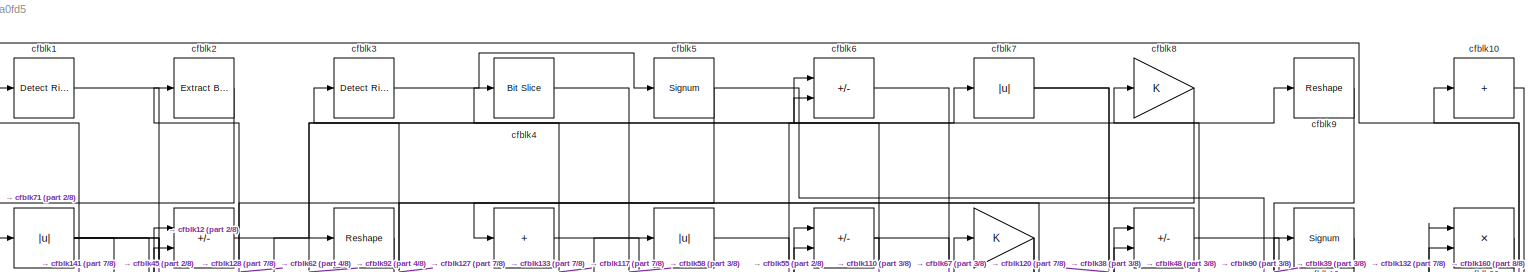
[diagram: root canvas - part 1/8, full width, top band]
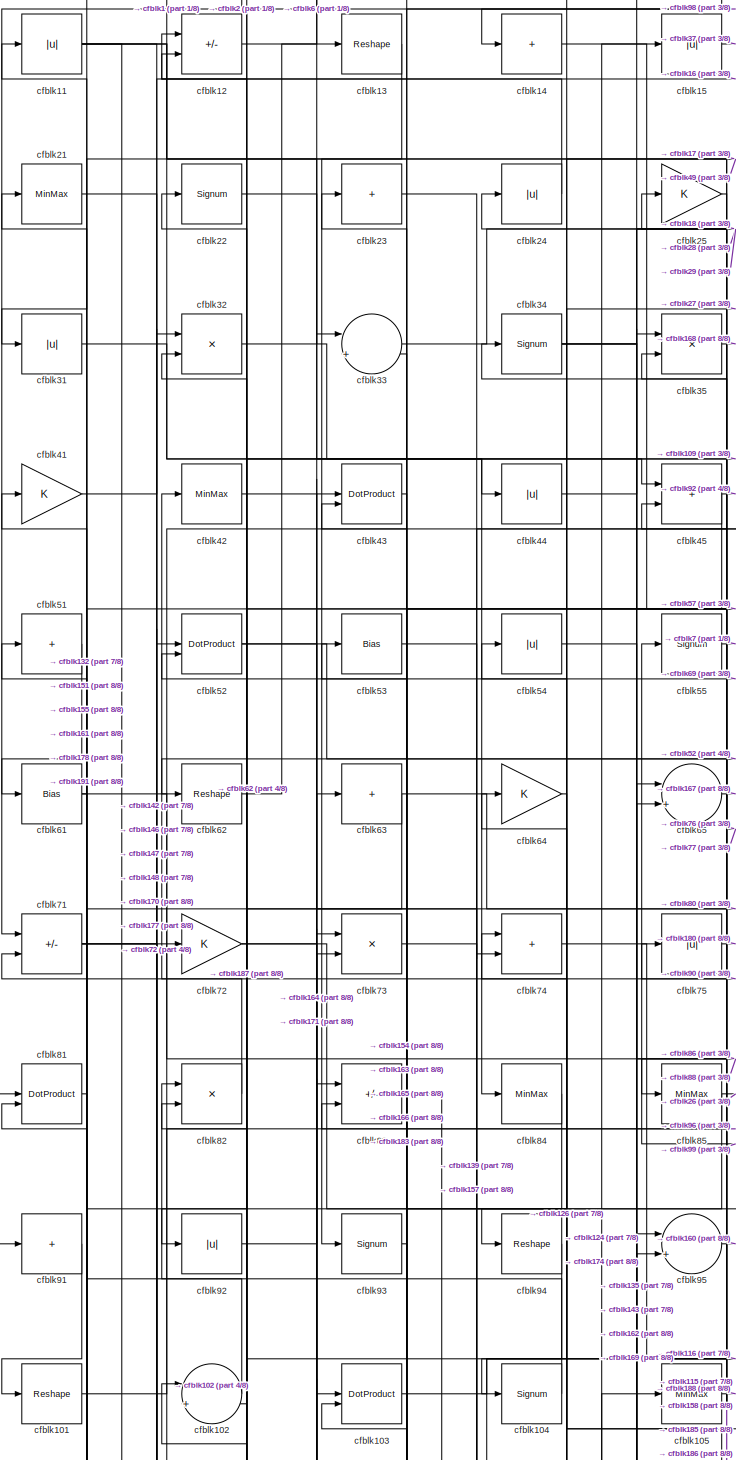
[diagram: root canvas - part 2/8, top left region]
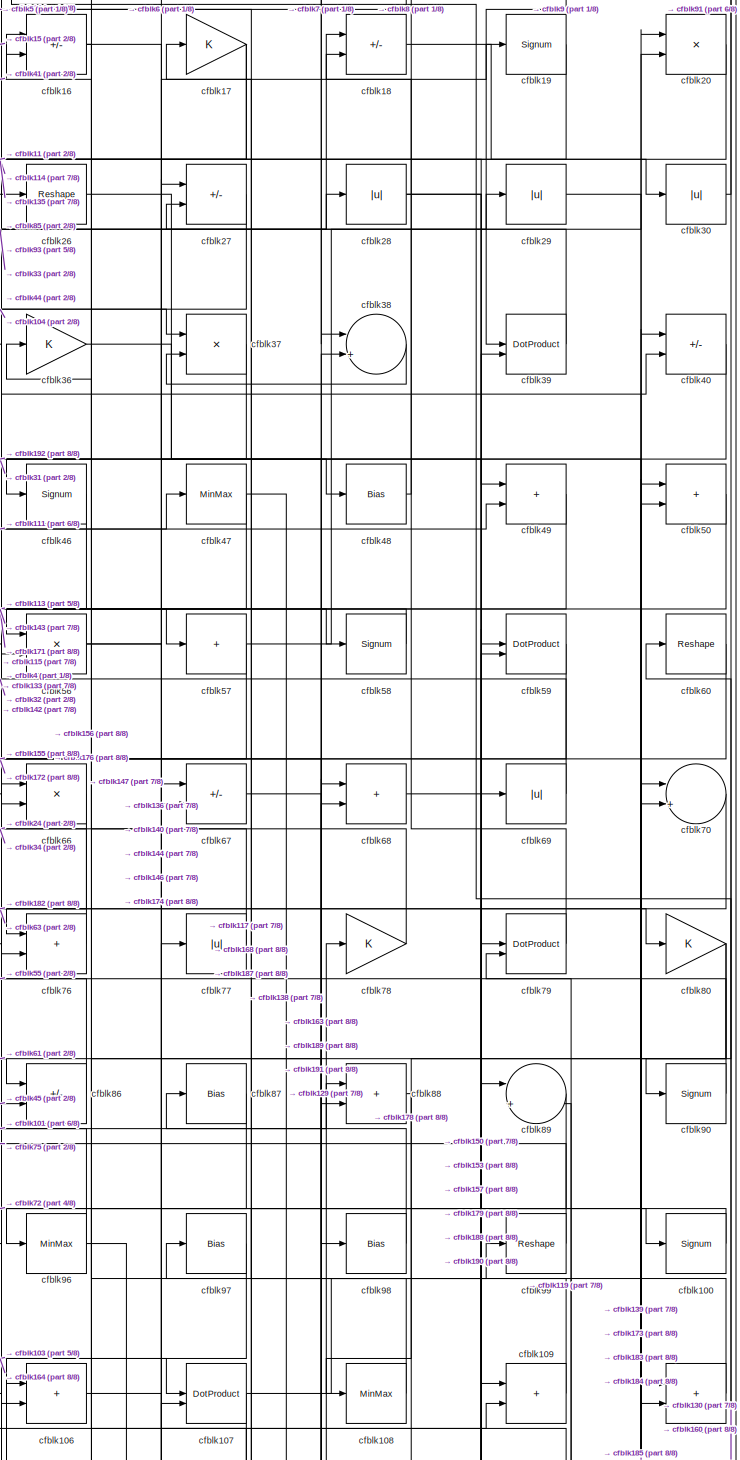
[diagram: root canvas - part 3/8, top right region]
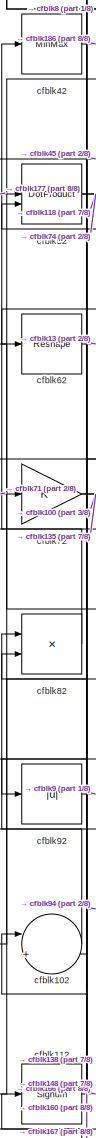
[diagram: root canvas - part 4/8, middle left region]
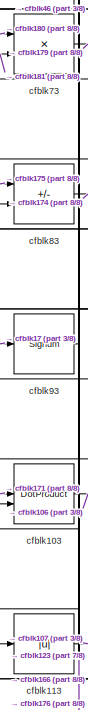
[diagram: root canvas - part 5/8, middle left region]
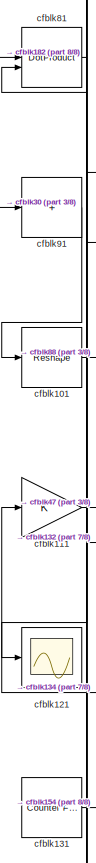
[diagram: root canvas - part 6/8, middle left region]
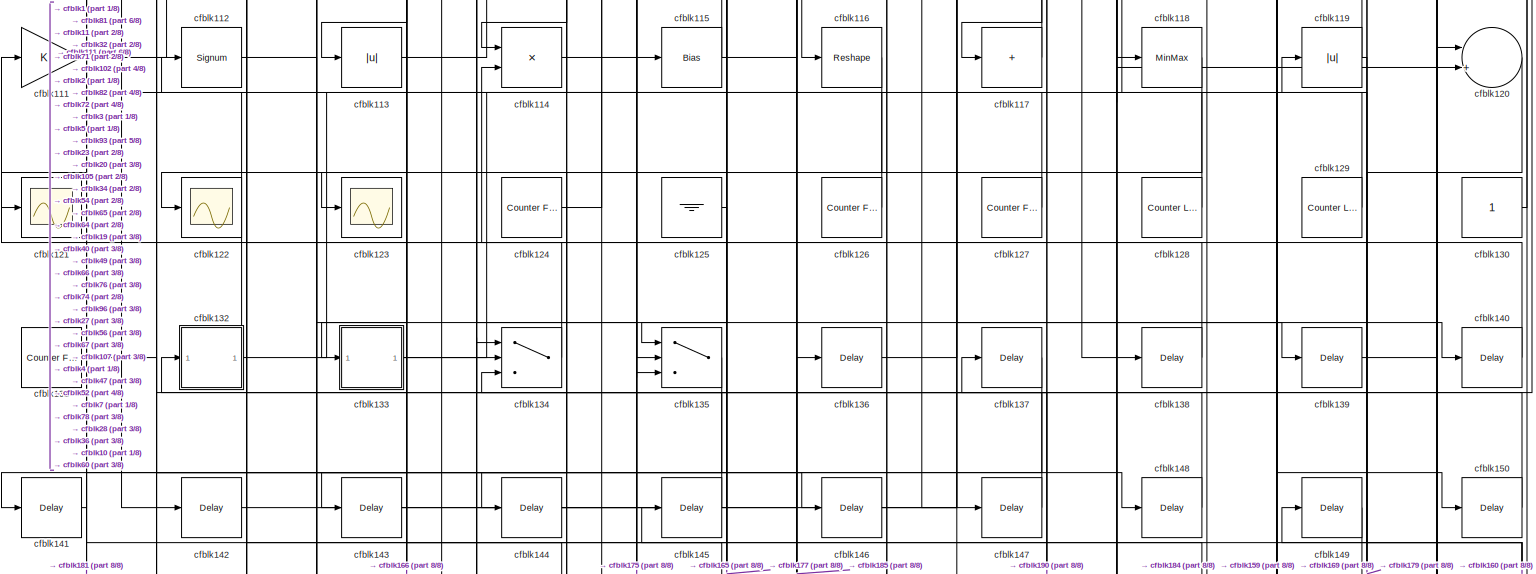
[diagram: root canvas - part 7/8, full width, middle band]
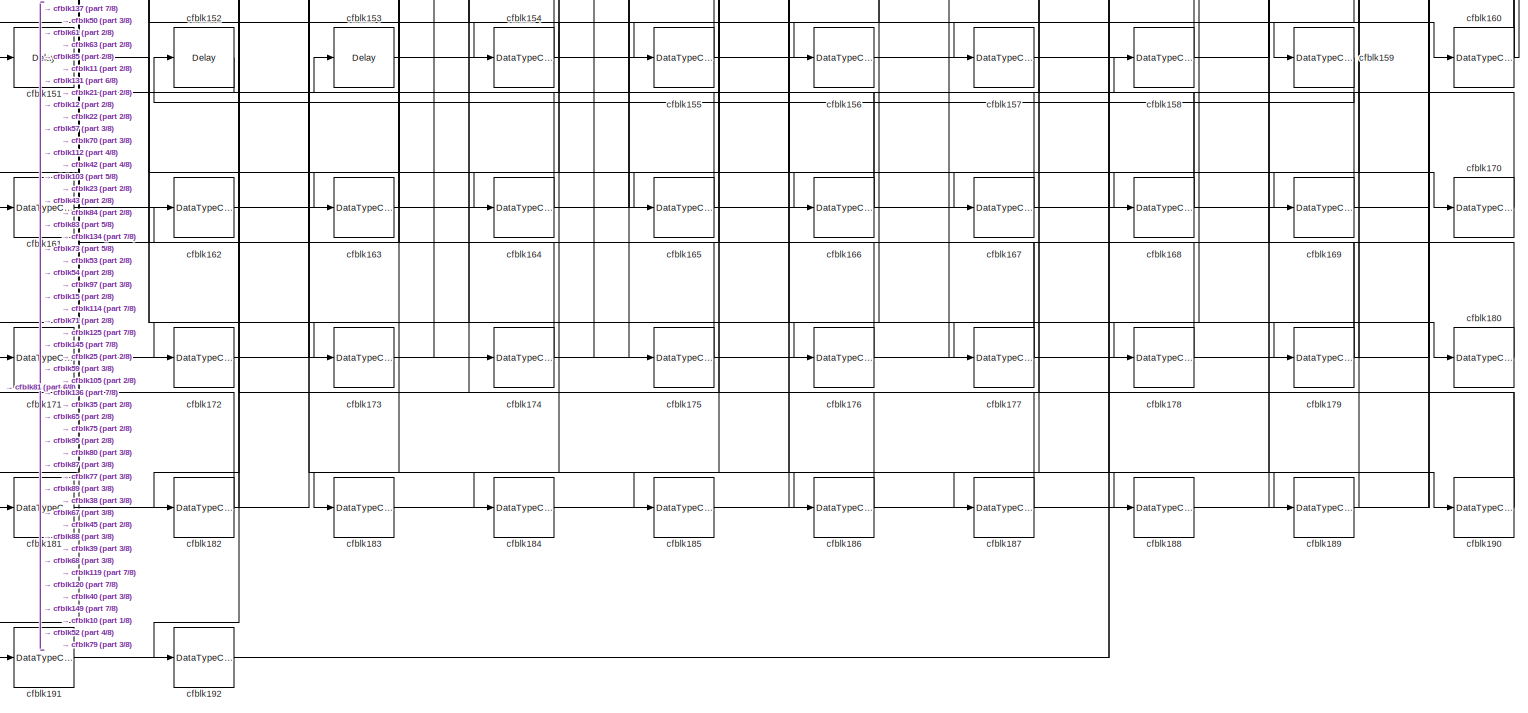
[diagram: root canvas - part 8/8, full width, bottom band]
MODEL slx_8f184b2a0fd5
KIND model
CONFIG AbsTol = auto
CONFIG EnableMultiTasking = off
CONFIG FixedStep = auto
CONFIG MaxStep = auto
CONFIG MinStep = auto
CONFIG RelTol = 1e-3
CONFIG SampleTimeConstraint = Unconstrained
CONFIG SolverName = VariableStepAuto
CONFIG StartTime = 0.0
CONFIG StopTime = 10.0
BLOCK [Reference] cfblk1  REF=hdlsllib/Logic and Bit
Operations/Detect Rise
Nonnegative
  SourceBlock = hdlsllib/Logic and Bit\nOperations/Detect Rise\nNonnegative
  SourceType = Detect Rise Nonnegative
BLOCK [Sum] cfblk10
  IconShape = rectangular
  Inputs = +
BLOCK [Signum] cfblk100
BLOCK [Reshape] cfblk101
BLOCK [Sum] cfblk102
  Inputs = |++
BLOCK [DotProduct] cfblk103
  OutDataTypeStr = Inherit: Inherit via internal rule
BLOCK [Signum] cfblk104
BLOCK [MinMax] cfblk105
BLOCK [Sum] cfblk106
  IconShape = rectangular
BLOCK [DotProduct] cfblk107
  OutDataTypeStr = Inherit: Inherit via internal rule
BLOCK [MinMax] cfblk108
BLOCK [Sum] cfblk109
  IconShape = rectangular
BLOCK [Abs] cfblk11
  SaturateOnIntegerOverflow = off
BLOCK [Sum] cfblk110
  IconShape = rectangular
BLOCK [Gain] cfblk111
BLOCK [Signum] cfblk112
BLOCK [Abs] cfblk113
  SaturateOnIntegerOverflow = off
BLOCK [Product] cfblk114
  Inputs = */
  RndMeth = Zero
  SaturateOnIntegerOverflow = on
BLOCK [Bias] cfblk115
  Bias = 0.0
  SaturateOnIntegerOverflow = off
BLOCK [Reshape] cfblk116
BLOCK [Sum] cfblk117
  IconShape = rectangular
  Inputs = +
BLOCK [MinMax] cfblk118
BLOCK [Abs] cfblk119
  SaturateOnIntegerOverflow = off
BLOCK [Sum] cfblk12
  IconShape = rectangular
  Inputs = +-
BLOCK [Sum] cfblk120
  Inputs = |++
BLOCK [Scope] cfblk121
  Floating = off
  NumInputPorts = 1
  ScopeSpecificationString = Simulink.scopes.TimeScopeBlockCfg('CurrentConfiguration', extmgr.ConfigurationSet(extmgr.Configuration('Core','General UI',true),extmgr.Configuration('Core','Source UI',true),extmgr.Configuration('Sources','WiredSimulink',true,'DataLoggingVariableName','ScopeData2','DataLoggingSaveFormat','Array','DataLoggingLimitDataPoints',true,'DataLoggingDecimation','1'),extmgr.Configuration('Visuals','Time Do...<+868ch>  <repeated x3 — deduplicated; at blocks: cfblk121, cfblk122, cfblk123>
BLOCK [Scope] cfblk122
  Floating = off
  NumInputPorts = 1
BLOCK [Scope] cfblk123
  Floating = off
  NumInputPorts = 1
BLOCK [Reference] cfblk124  REF=hdlsllib/Sources/Counter
Free-Running
  SourceBlock = hdlsllib/Sources/Counter\nFree-Running
  SourceType = Counter Free-Running
BLOCK [Ground] cfblk125
BLOCK [Reference] cfblk126  REF=hdlsllib/Sources/Counter
Free-Running
  SourceBlock = hdlsllib/Sources/Counter\nFree-Running
  SourceType = Counter Free-Running
BLOCK [Reference] cfblk127  REF=hdlsllib/Sources/Counter
Free-Running
  SourceBlock = hdlsllib/Sources/Counter\nFree-Running
  SourceType = Counter Free-Running
BLOCK [Reference] cfblk128  REF=hdlsllib/Sources/Counter
Limited
  SourceBlock = hdlsllib/Sources/Counter\nLimited
  SourceType = Counter Limited
BLOCK [Reference] cfblk129  REF=hdlsllib/Sources/Counter
Limited
  SourceBlock = hdlsllib/Sources/Counter\nLimited
  SourceType = Counter Limited
BLOCK [Reshape] cfblk13
BLOCK [Constant] cfblk130
  SampleTime = -1
BLOCK [Reference] cfblk131  REF=hdlsllib/Sources/Counter
Free-Running
  SourceBlock = hdlsllib/Sources/Counter\nFree-Running
  SourceType = Counter Free-Running
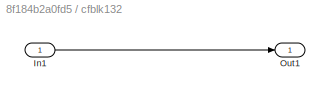
BLOCK [SubSystem] cfblk132
  LibrarySourceBlock = hdlsllib/Ports &\nSubsystems/Subsystem
BLOCK [Inport] cfblk132/In1
BLOCK [Outport] cfblk132/Out1
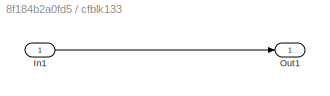
BLOCK [SubSystem] cfblk133
  LibrarySourceBlock = hdlsllib/Ports &\nSubsystems/Subsystem
BLOCK [Inport] cfblk133/In1
BLOCK [Outport] cfblk133/Out1
BLOCK [Switch] cfblk134
  InputSameDT = off
  SaturateOnIntegerOverflow = off
BLOCK [Switch] cfblk135
  InputSameDT = off
  SaturateOnIntegerOverflow = off
BLOCK [Delay] cfblk136
  InputPortMap = u0
  SampleTime = 1
BLOCK [Delay] cfblk137
  InputPortMap = u0
  SampleTime = 1
BLOCK [Delay] cfblk138
  InputPortMap = u0
  SampleTime = 1
BLOCK [Delay] cfblk139
  InputPortMap = u0
  SampleTime = 1
BLOCK [Sum] cfblk14
  IconShape = rectangular
  Inputs = +
BLOCK [Delay] cfblk140
  InputPortMap = u0
  SampleTime = 1
BLOCK [Delay] cfblk141
  InputPortMap = u0
  SampleTime = 1
BLOCK [Delay] cfblk142
  InputPortMap = u0
  SampleTime = 1
BLOCK [Delay] cfblk143
  InputPortMap = u0
  SampleTime = 1
BLOCK [Delay] cfblk144
  InputPortMap = u0
  SampleTime = 1
BLOCK [Delay] cfblk145
  InputPortMap = u0
  SampleTime = 1
BLOCK [Delay] cfblk146
  InputPortMap = u0
  SampleTime = 1
BLOCK [Delay] cfblk147
  InputPortMap = u0
  SampleTime = 1
BLOCK [Delay] cfblk148
  InputPortMap = u0
  SampleTime = 1
BLOCK [Delay] cfblk149
  InputPortMap = u0
  SampleTime = 1
BLOCK [Abs] cfblk15
  SaturateOnIntegerOverflow = off
BLOCK [Delay] cfblk150
  InputPortMap = u0
  SampleTime = 1
BLOCK [Delay] cfblk151
  InputPortMap = u0
  SampleTime = 1
BLOCK [Delay] cfblk152
  InputPortMap = u0
  SampleTime = 1
BLOCK [Delay] cfblk153
  InputPortMap = u0
  SampleTime = 1
BLOCK [DataTypeConversion] cfblk154
  OutDataTypeStr = uint8
  RndMeth = Floor
  SaturateOnIntegerOverflow = off
BLOCK [DataTypeConversion] cfblk155
  OutDataTypeStr = uint8
  RndMeth = Floor
  SaturateOnIntegerOverflow = off
BLOCK [DataTypeConversion] cfblk156
  OutDataTypeStr = uint8
  RndMeth = Floor
  SaturateOnIntegerOverflow = off
BLOCK [DataTypeConversion] cfblk157
  OutDataTypeStr = uint8
  RndMeth = Floor
  SaturateOnIntegerOverflow = off
BLOCK [DataTypeConversion] cfblk158
  OutDataTypeStr = uint8
  RndMeth = Floor
  SaturateOnIntegerOverflow = off
BLOCK [DataTypeConversion] cfblk159
  OutDataTypeStr = uint8
  RndMeth = Floor
  SaturateOnIntegerOverflow = off
BLOCK [Sum] cfblk16
  IconShape = rectangular
  Inputs = +-
BLOCK [DataTypeConversion] cfblk160
  RndMeth = Floor
  SaturateOnIntegerOverflow = off
BLOCK [DataTypeConversion] cfblk161
  OutDataTypeStr = uint8
  RndMeth = Floor
  SaturateOnIntegerOverflow = off
BLOCK [DataTypeConversion] cfblk162
  OutDataTypeStr = uint8
  RndMeth = Floor
  SaturateOnIntegerOverflow = off
BLOCK [DataTypeConversion] cfblk163
  RndMeth = Floor
  SaturateOnIntegerOverflow = off
BLOCK [DataTypeConversion] cfblk164
  OutDataTypeStr = uint8
  RndMeth = Floor
  SaturateOnIntegerOverflow = off
BLOCK [DataTypeConversion] cfblk165
  OutDataTypeStr = uint8
  RndMeth = Floor
  SaturateOnIntegerOverflow = off
BLOCK [DataTypeConversion] cfblk166
  RndMeth = Floor
  SaturateOnIntegerOverflow = off
BLOCK [DataTypeConversion] cfblk167
  OutDataTypeStr = uint8
  RndMeth = Floor
  SaturateOnIntegerOverflow = off
BLOCK [DataTypeConversion] cfblk168
  RndMeth = Floor
  SaturateOnIntegerOverflow = off
BLOCK [DataTypeConversion] cfblk169
  OutDataTypeStr = uint8
  RndMeth = Floor
  SaturateOnIntegerOverflow = off
BLOCK [Gain] cfblk17
BLOCK [DataTypeConversion] cfblk170
  OutDataTypeStr = uint8
  RndMeth = Floor
  SaturateOnIntegerOverflow = off
BLOCK [DataTypeConversion] cfblk171
  RndMeth = Floor
  SaturateOnIntegerOverflow = off
BLOCK [DataTypeConversion] cfblk172
  OutDataTypeStr = uint8
  RndMeth = Floor
  SaturateOnIntegerOverflow = off
BLOCK [DataTypeConversion] cfblk173
  OutDataTypeStr = uint8
  RndMeth = Floor
  SaturateOnIntegerOverflow = off
BLOCK [DataTypeConversion] cfblk174
  RndMeth = Floor
  SaturateOnIntegerOverflow = off
BLOCK [DataTypeConversion] cfblk175
  OutDataTypeStr = uint8
  RndMeth = Floor
  SaturateOnIntegerOverflow = off
BLOCK [DataTypeConversion] cfblk176
  OutDataTypeStr = uint8
  RndMeth = Floor
  SaturateOnIntegerOverflow = off
BLOCK [DataTypeConversion] cfblk177
  RndMeth = Floor
  SaturateOnIntegerOverflow = off
BLOCK [DataTypeConversion] cfblk178
  OutDataTypeStr = uint8
  RndMeth = Floor
  SaturateOnIntegerOverflow = off
BLOCK [DataTypeConversion] cfblk179
  RndMeth = Floor
  SaturateOnIntegerOverflow = off
BLOCK [Sum] cfblk18
  IconShape = rectangular
  Inputs = +-
BLOCK [DataTypeConversion] cfblk180
  OutDataTypeStr = uint8
  RndMeth = Floor
  SaturateOnIntegerOverflow = off
BLOCK [DataTypeConversion] cfblk181
  OutDataTypeStr = uint8
  RndMeth = Floor
  SaturateOnIntegerOverflow = off
BLOCK [DataTypeConversion] cfblk182
  RndMeth = Floor
  SaturateOnIntegerOverflow = off
BLOCK [DataTypeConversion] cfblk183
  OutDataTypeStr = uint8
  RndMeth = Floor
  SaturateOnIntegerOverflow = off
BLOCK [DataTypeConversion] cfblk184
  OutDataTypeStr = uint8
  RndMeth = Floor
  SaturateOnIntegerOverflow = off
BLOCK [DataTypeConversion] cfblk185
  RndMeth = Floor
  SaturateOnIntegerOverflow = off
BLOCK [DataTypeConversion] cfblk186
  OutDataTypeStr = uint8
  RndMeth = Floor
  SaturateOnIntegerOverflow = off
BLOCK [DataTypeConversion] cfblk187
  OutDataTypeStr = uint8
  RndMeth = Floor
  SaturateOnIntegerOverflow = off
BLOCK [DataTypeConversion] cfblk188
  OutDataTypeStr = uint8
  RndMeth = Floor
  SaturateOnIntegerOverflow = off
BLOCK [DataTypeConversion] cfblk189
  OutDataTypeStr = uint8
  RndMeth = Floor
  SaturateOnIntegerOverflow = off
BLOCK [Signum] cfblk19
BLOCK [DataTypeConversion] cfblk190
  RndMeth = Floor
  SaturateOnIntegerOverflow = off
BLOCK [DataTypeConversion] cfblk191
  OutDataTypeStr = uint8
  RndMeth = Floor
  SaturateOnIntegerOverflow = off
BLOCK [DataTypeConversion] cfblk192
  OutDataTypeStr = uint8
  RndMeth = Floor
  SaturateOnIntegerOverflow = off
BLOCK [Reference] cfblk2  REF=simulink/Logic and Bit
Operations/Extract Bits
  LibrarySourceBlock = hdlsllib/Logic and Bit\nOperations/Extract Bits
  SourceBlock = simulink/Logic and Bit\nOperations/Extract Bits
  SourceType = Extract Bits
BLOCK [Product] cfblk20
  Inputs = */
  RndMeth = Zero
  SaturateOnIntegerOverflow = on
BLOCK [MinMax] cfblk21
BLOCK [Signum] cfblk22
BLOCK [Sum] cfblk23
  IconShape = rectangular
  Inputs = +
BLOCK [Abs] cfblk24
  SaturateOnIntegerOverflow = off
BLOCK [Gain] cfblk25
BLOCK [Reshape] cfblk26
BLOCK [Sum] cfblk27
  IconShape = rectangular
  Inputs = +-
BLOCK [Abs] cfblk28
  SaturateOnIntegerOverflow = off
BLOCK [Abs] cfblk29
  SaturateOnIntegerOverflow = off
BLOCK [Reference] cfblk3  REF=hdlsllib/Logic and Bit
Operations/Detect Rise
Nonnegative
  SourceBlock = hdlsllib/Logic and Bit\nOperations/Detect Rise\nNonnegative
  SourceType = Detect Rise Nonnegative
BLOCK [Abs] cfblk30
  SaturateOnIntegerOverflow = off
BLOCK [Abs] cfblk31
  SaturateOnIntegerOverflow = off
BLOCK [Product] cfblk32
  Inputs = */
  RndMeth = Zero
  SaturateOnIntegerOverflow = on
BLOCK [Sum] cfblk33
  Inputs = |++
BLOCK [Signum] cfblk34
BLOCK [Product] cfblk35
  Inputs = */
  RndMeth = Zero
  SaturateOnIntegerOverflow = on
BLOCK [Gain] cfblk36
BLOCK [Product] cfblk37
  Inputs = */
  RndMeth = Zero
  SaturateOnIntegerOverflow = on
BLOCK [Sum] cfblk38
  Inputs = |++
BLOCK [DotProduct] cfblk39
  OutDataTypeStr = Inherit: Inherit via internal rule
BLOCK [Reference] cfblk4  REF=hdlsllib/Logic and Bit
Operations/Bit Slice
  SourceBlock = hdlsllib/Logic and Bit\nOperations/Bit Slice
  SourceType = Bit Slice
BLOCK [Sum] cfblk40
  IconShape = rectangular
  Inputs = +-
BLOCK [Gain] cfblk41
BLOCK [MinMax] cfblk42
BLOCK [DotProduct] cfblk43
  OutDataTypeStr = Inherit: Inherit via internal rule
BLOCK [Abs] cfblk44
  SaturateOnIntegerOverflow = off
BLOCK [Sum] cfblk45
  IconShape = rectangular
BLOCK [Signum] cfblk46
BLOCK [MinMax] cfblk47
BLOCK [Bias] cfblk48
  Bias = 0.0
  SaturateOnIntegerOverflow = off
BLOCK [Sum] cfblk49
  IconShape = rectangular
BLOCK [Signum] cfblk5
BLOCK [Sum] cfblk50
  IconShape = rectangular
BLOCK [Sum] cfblk51
  IconShape = rectangular
  Inputs = +
BLOCK [DotProduct] cfblk52
  OutDataTypeStr = Inherit: Inherit via internal rule
BLOCK [Bias] cfblk53
  Bias = 0.0
  SaturateOnIntegerOverflow = off
BLOCK [Abs] cfblk54
  SaturateOnIntegerOverflow = off
BLOCK [Signum] cfblk55
BLOCK [Product] cfblk56
  Inputs = */
  RndMeth = Zero
  SaturateOnIntegerOverflow = on
BLOCK [Sum] cfblk57
  IconShape = rectangular
  Inputs = +
BLOCK [Signum] cfblk58
BLOCK [DotProduct] cfblk59
  OutDataTypeStr = Inherit: Inherit via internal rule
BLOCK [Sum] cfblk6
  IconShape = rectangular
  Inputs = +-
BLOCK [Reshape] cfblk60
BLOCK [Bias] cfblk61
  Bias = 0.0
  SaturateOnIntegerOverflow = off
BLOCK [Reshape] cfblk62
BLOCK [Sum] cfblk63
  IconShape = rectangular
  Inputs = +
BLOCK [Gain] cfblk64
BLOCK [Sum] cfblk65
  Inputs = |++
BLOCK [Product] cfblk66
  Inputs = */
  RndMeth = Zero
  SaturateOnIntegerOverflow = on
BLOCK [Sum] cfblk67
  IconShape = rectangular
  Inputs = +-
BLOCK [Sum] cfblk68
  IconShape = rectangular
BLOCK [Abs] cfblk69
  SaturateOnIntegerOverflow = off
BLOCK [Abs] cfblk7
  SaturateOnIntegerOverflow = off
BLOCK [Sum] cfblk70
  Inputs = |++
BLOCK [Sum] cfblk71
  IconShape = rectangular
  Inputs = +-
BLOCK [Gain] cfblk72
BLOCK [Product] cfblk73
  Inputs = */
  RndMeth = Zero
  SaturateOnIntegerOverflow = on
BLOCK [Sum] cfblk74
  IconShape = rectangular
BLOCK [Abs] cfblk75
  SaturateOnIntegerOverflow = off
BLOCK [Sum] cfblk76
  IconShape = rectangular
BLOCK [Abs] cfblk77
  SaturateOnIntegerOverflow = off
BLOCK [Gain] cfblk78
BLOCK [DotProduct] cfblk79
  OutDataTypeStr = Inherit: Inherit via internal rule
BLOCK [Gain] cfblk8
BLOCK [Gain] cfblk80
BLOCK [DotProduct] cfblk81
  OutDataTypeStr = Inherit: Inherit via internal rule
BLOCK [Product] cfblk82
  Inputs = */
  RndMeth = Zero
  SaturateOnIntegerOverflow = on
BLOCK [Sum] cfblk83
  IconShape = rectangular
  Inputs = +-
BLOCK [MinMax] cfblk84
BLOCK [MinMax] cfblk85
BLOCK [Sum] cfblk86
  IconShape = rectangular
  Inputs = +-
BLOCK [Bias] cfblk87
  Bias = 0.0
  SaturateOnIntegerOverflow = off
BLOCK [Sum] cfblk88
  IconShape = rectangular
BLOCK [Sum] cfblk89
  Inputs = |++
BLOCK [Reshape] cfblk9
BLOCK [Signum] cfblk90
BLOCK [Sum] cfblk91
  IconShape = rectangular
  Inputs = +
BLOCK [Abs] cfblk92
  SaturateOnIntegerOverflow = off
BLOCK [Signum] cfblk93
BLOCK [Reshape] cfblk94
BLOCK [Sum] cfblk95
  Inputs = |++
BLOCK [MinMax] cfblk96
BLOCK [Bias] cfblk97
  Bias = 0.0
  SaturateOnIntegerOverflow = off
BLOCK [Bias] cfblk98
  Bias = 0.0
  SaturateOnIntegerOverflow = off
BLOCK [Reshape] cfblk99
LINE cfblk100:1 -> cfblk96:1
LINE cfblk101:1 -> cfblk88:1
LINE cfblk102:1 -> cfblk82:1
LINE cfblk103:1 -> cfblk106:1
LINE cfblk104:1 -> cfblk51:1
LINE cfblk105:1 -> cfblk188:1
LINE cfblk106:1 -> cfblk109:2
NET cfblk107:1 -> cfblk117:1, cfblk99:1
LINE cfblk108:1 -> cfblk17:1
LINE cfblk109:1 -> cfblk87:1
LINE cfblk10:1 -> cfblk132:1
LINE cfblk110:1 -> cfblk6:2
LINE cfblk111:1 -> cfblk47:1
LINE cfblk112:1 -> cfblk166:1
LINE cfblk113:1 -> cfblk107:1
LINE cfblk114:1 -> cfblk175:1
NET cfblk115:1 -> cfblk40:2, cfblk64:1
LINE cfblk116:1 -> cfblk122:1
LINE cfblk117:1 -> cfblk4:1
LINE cfblk118:1 -> cfblk144:1
NET cfblk119:1 -> cfblk159:1, cfblk36:1
NET cfblk11:1 -> cfblk142:1, cfblk170:1, cfblk33:1, cfblk49:1
LINE cfblk120:1 -> cfblk169:1
LINE cfblk124:1 -> cfblk105:1
LINE cfblk125:1 -> cfblk165:1
LINE cfblk126:1 -> cfblk74:1
LINE cfblk127:1 -> cfblk3:1
LINE cfblk128:1 -> cfblk2:1
LINE cfblk129:1 -> cfblk78:1
LINE cfblk12:1 -> cfblk6:1
LINE cfblk130:1 -> cfblk60:1
LINE cfblk131:1 -> cfblk154:1
LINE cfblk132/In1:1 -> cfblk132/Out1:1
NET cfblk132:1 -> cfblk65:1, cfblk81:2
LINE cfblk133/In1:1 -> cfblk133/Out1:1
NET cfblk133:1 -> cfblk49:2, cfblk76:2
LINE cfblk134:1 -> cfblk111:1
LINE cfblk135:1 -> cfblk141:1
LINE cfblk136:1 -> cfblk107:2
LINE cfblk137:1 -> cfblk181:1
LINE cfblk138:1 -> cfblk102:1
LINE cfblk139:1 -> cfblk20:2
LINE cfblk13:1 -> cfblk31:1
LINE cfblk140:1 -> cfblk114:2
LINE cfblk141:1 -> cfblk1:1
LINE cfblk142:1 -> cfblk66:1
LINE cfblk143:1 -> cfblk65:2
LINE cfblk144:1 -> cfblk67:1
LINE cfblk145:1 -> cfblk134:2
LINE cfblk146:1 -> cfblk27:1
LINE cfblk147:1 -> cfblk32:1
LINE cfblk148:1 -> cfblk82:2
LINE cfblk149:1 -> cfblk184:1
LINE cfblk14:1 -> cfblk57:1
LINE cfblk150:1 -> cfblk134:3
LINE cfblk151:1 -> cfblk173:1
LINE cfblk152:1 -> cfblk158:1
LINE cfblk153:1 -> cfblk39:2
LINE cfblk154:1 -> cfblk53:1
LINE cfblk155:1 -> cfblk71:2
LINE cfblk156:1 -> cfblk59:1
LINE cfblk157:1 -> cfblk59:2
LINE cfblk158:1 -> cfblk45:2
LINE cfblk159:1 -> cfblk152:1
LINE cfblk15:1 -> cfblk37:1
NET cfblk160:1 -> cfblk10:1, cfblk149:1, cfblk52:2, cfblk79:2
LINE cfblk161:1 -> cfblk95:1
LINE cfblk162:1 -> cfblk95:2
NET cfblk163:1 -> cfblk23:1, cfblk38:2
LINE cfblk164:1 -> cfblk43:1
LINE cfblk165:1 -> cfblk43:2
NET cfblk166:1 -> cfblk103:2, cfblk11:1, cfblk120:1
LINE cfblk167:1 -> cfblk112:1
NET cfblk168:1 -> cfblk54:1, cfblk97:1
LINE cfblk169:1 -> cfblk35:1
NET cfblk16:1 -> cfblk46:1, cfblk48:1
LINE cfblk170:1 -> cfblk35:2
NET cfblk171:1 -> cfblk103:1, cfblk63:1
LINE cfblk172:1 -> cfblk50:1
LINE cfblk173:1 -> cfblk50:2
NET cfblk174:1 -> cfblk12:2, cfblk15:1, cfblk77:1
LINE cfblk175:1 -> cfblk83:1
LINE cfblk176:1 -> cfblk83:2
NET cfblk177:1 -> cfblk145:1, cfblk52:1
LINE cfblk178:1 -> cfblk21:1
NET cfblk179:1 -> cfblk119:1, cfblk153:1, cfblk79:1
NET cfblk17:1 -> cfblk85:1, cfblk93:1
LINE cfblk180:1 -> cfblk73:1
LINE cfblk181:1 -> cfblk73:2
NET cfblk182:1 -> cfblk162:1, cfblk81:1
LINE cfblk183:1 -> cfblk70:1
LINE cfblk184:1 -> cfblk70:2
NET cfblk185:1 -> cfblk136:1, cfblk40:1
LINE cfblk186:1 -> cfblk25:1
LINE cfblk187:1 -> cfblk22:1
LINE cfblk188:1 -> cfblk89:1
LINE cfblk189:1 -> cfblk89:2
LINE cfblk18:1 -> cfblk30:1
NET cfblk190:1 -> cfblk134:1, cfblk137:1
LINE cfblk191:1 -> cfblk68:1
LINE cfblk192:1 -> cfblk68:2
LINE cfblk19:1 -> cfblk135:1
LINE cfblk1:1 -> cfblk45:1
LINE cfblk20:1 -> cfblk114:1
LINE cfblk21:1 -> cfblk177:1
LINE cfblk22:1 -> cfblk44:1
LINE cfblk23:1 -> cfblk139:1
LINE cfblk24:1 -> cfblk12:1
LINE cfblk25:1 -> cfblk185:1
LINE cfblk26:1 -> cfblk110:2
LINE cfblk27:1 -> cfblk104:1
NET cfblk28:1 -> cfblk150:1, cfblk69:1
LINE cfblk29:1 -> cfblk110:1
LINE cfblk2:1 -> cfblk71:1
LINE cfblk30:1 -> cfblk91:1
LINE cfblk31:1 -> cfblk109:1
LINE cfblk32:1 -> cfblk84:1
LINE cfblk33:1 -> cfblk18:1
NET cfblk34:1 -> cfblk115:1, cfblk29:1, cfblk88:2
LINE cfblk35:1 -> cfblk168:1
LINE cfblk36:1 -> cfblk98:1
LINE cfblk37:1 -> cfblk56:2
LINE cfblk38:1 -> cfblk37:2
LINE cfblk39:1 -> cfblk27:2
LINE cfblk3:1 -> cfblk5:1
LINE cfblk40:1 -> cfblk192:1
LINE cfblk41:1 -> cfblk16:2
LINE cfblk42:1 -> cfblk186:1
LINE cfblk43:1 -> cfblk163:1
LINE cfblk44:1 -> cfblk28:1
NET cfblk45:1 -> cfblk86:2, cfblk92:1
LINE cfblk46:1 -> cfblk113:1
NET cfblk47:1 -> cfblk138:1, cfblk66:2
LINE cfblk48:1 -> cfblk8:1
LINE cfblk49:1 -> cfblk143:1
LINE cfblk4:1 -> cfblk58:1
LINE cfblk50:1 -> cfblk171:1
LINE cfblk51:1 -> cfblk61:1
NET cfblk52:1 -> cfblk118:1, cfblk74:2
LINE cfblk53:1 -> cfblk157:1
LINE cfblk54:1 -> cfblk135:2
LINE cfblk55:1 -> cfblk7:1
NET cfblk56:1 -> cfblk140:1, cfblk19:1
NET cfblk57:1 -> cfblk172:1, cfblk20:1
LINE cfblk58:1 -> cfblk56:1
LINE cfblk59:1 -> cfblk155:1
NET cfblk5:1 -> cfblk133:1, cfblk90:1
LINE cfblk60:1 -> cfblk106:2
NET cfblk61:1 -> cfblk161:1, cfblk86:1
LINE cfblk62:1 -> cfblk13:1
NET cfblk63:1 -> cfblk151:1, cfblk80:1
LINE cfblk64:1 -> cfblk94:1
LINE cfblk65:1 -> cfblk167:1
LINE cfblk66:1 -> cfblk76:1
LINE cfblk67:1 -> cfblk189:1
LINE cfblk68:1 -> cfblk190:1
LINE cfblk69:1 -> cfblk32:2
LINE cfblk6:1 -> cfblk67:2
LINE cfblk70:1 -> cfblk182:1
NET cfblk71:1 -> cfblk146:1, cfblk148:1, cfblk72:1
NET cfblk72:1 -> cfblk100:1, cfblk135:3
LINE cfblk73:1 -> cfblk179:1
LINE cfblk74:1 -> cfblk116:1
LINE cfblk75:1 -> cfblk180:1
LINE cfblk76:1 -> cfblk24:1
LINE cfblk77:1 -> cfblk34:1
LINE cfblk78:1 -> cfblk16:1
LINE cfblk79:1 -> cfblk18:2
NET cfblk7:1 -> cfblk120:2, cfblk38:1
NET cfblk80:1 -> cfblk108:1, cfblk176:1
LINE cfblk81:1 -> cfblk121:1
LINE cfblk82:1 -> cfblk42:1
LINE cfblk83:1 -> cfblk174:1
LINE cfblk84:1 -> cfblk183:1
NET cfblk85:1 -> cfblk191:1, cfblk26:1
LINE cfblk86:1 -> cfblk41:1
LINE cfblk87:1 -> cfblk156:1
LINE cfblk88:1 -> cfblk178:1
LINE cfblk89:1 -> cfblk187:1
LINE cfblk8:1 -> cfblk62:1
LINE cfblk90:1 -> cfblk55:1
LINE cfblk91:1 -> cfblk101:1
LINE cfblk92:1 -> cfblk9:1
LINE cfblk93:1 -> cfblk123:1
LINE cfblk94:1 -> cfblk102:2
LINE cfblk95:1 -> cfblk160:1
NET cfblk96:1 -> cfblk147:1, cfblk33:2
LINE cfblk97:1 -> cfblk164:1
LINE cfblk98:1 -> cfblk14:1
LINE cfblk99:1 -> cfblk75:1
LINE cfblk9:1 -> cfblk39:1
note: NET lines group one-source signal fan-out (src -> all destinations, sorted); 1:1 wires keep LINE
